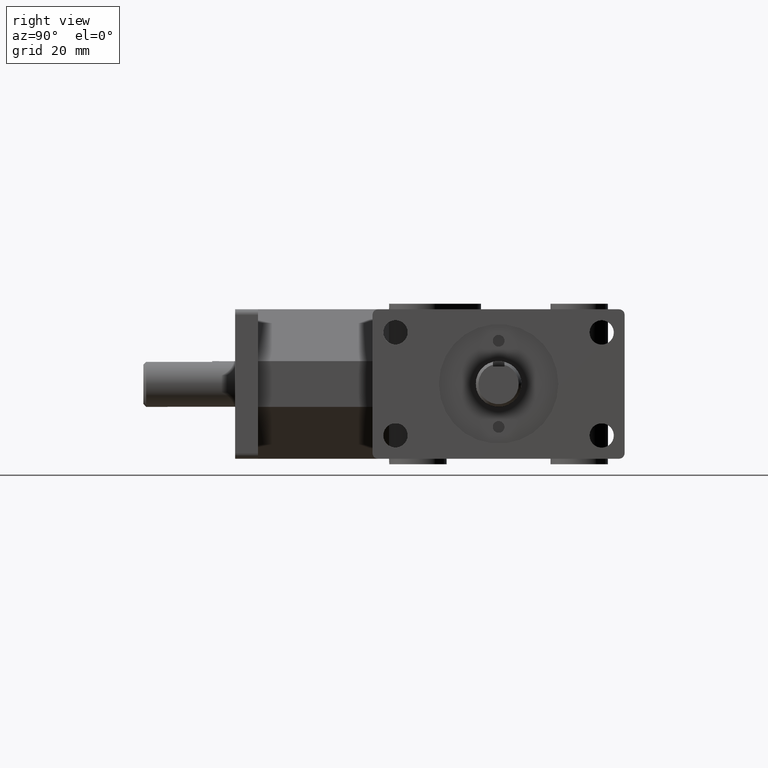
[diagram: clean part render]
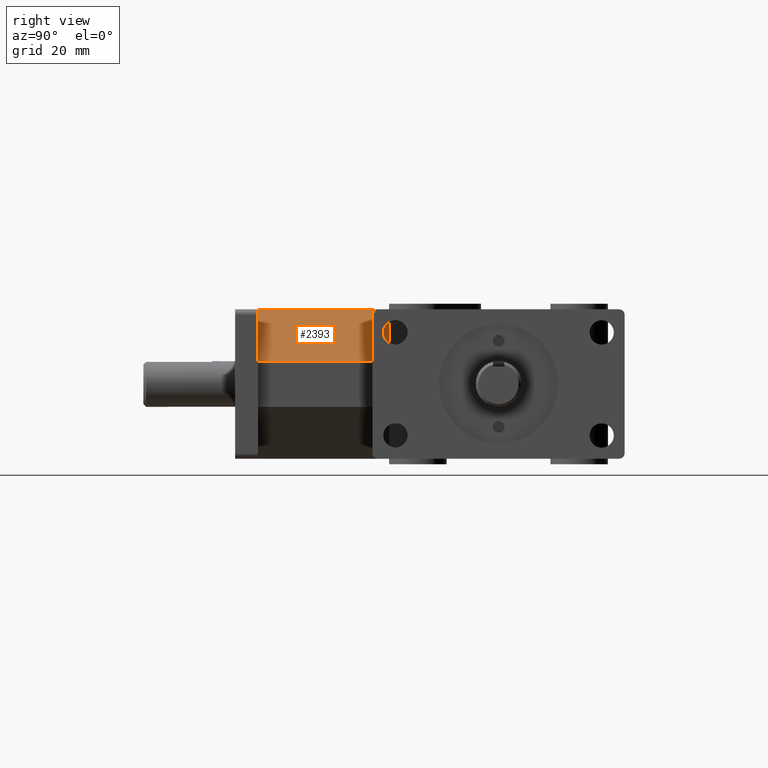
[diagram: same view with one face highlighted and labeled with its STEP entity id]
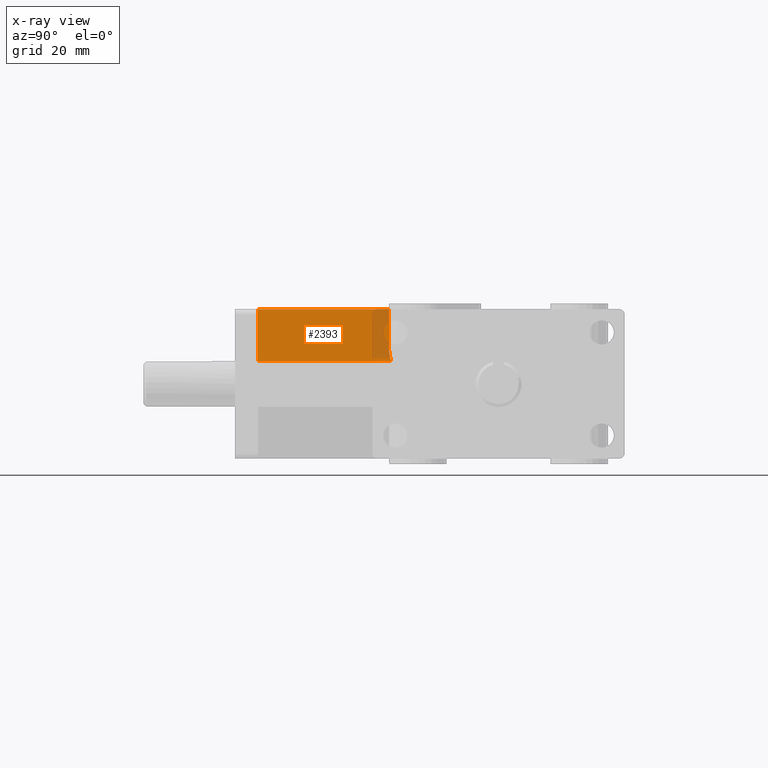
[diagram: x-ray of the same camera — body ghosted, the highlighted face saturated]
A machine part, right view. The second image highlights one B-rep face of the part: STEP entity #2393.
The next image is the same camera in x-ray: the body ghosted, the highlighted face saturated — about 11% of this face is hidden behind the body in this view.
In plain terms, the highlighted planar face has unit normal (-0.7489, 0, -0.6627).
Its self-contained STEP definition (entity closure, byte-faithful):
#235=FACE_OUTER_BOUND('',#370,.T.);
#370=EDGE_LOOP('',(#1718,#1719,#1720,#1721,#1722));
#544=ELLIPSE('',#2563,0.475316107974472,0.315);
#573=LINE('',#3581,#801);
#640=LINE('',#3747,#868);
#641=LINE('',#3749,#869);
#642=LINE('',#3751,#870);
#801=VECTOR('',#2819,1.);
#868=VECTOR('',#2950,1.);
#869=VECTOR('',#2951,1.);
#870=VECTOR('',#2952,1.);
#1031=VERTEX_POINT('',#3578);
#1032=VERTEX_POINT('',#3580);
#1099=VERTEX_POINT('',#3746);
#1100=VERTEX_POINT('',#3748);
#1101=VERTEX_POINT('',#3750);
#1265=EDGE_CURVE('',#1031,#1032,#573,.T.);
#1349=EDGE_CURVE('',#1032,#1099,#640,.T.);
#1350=EDGE_CURVE('',#1100,#1031,#641,.T.);
#1351=EDGE_CURVE('',#1101,#1100,#642,.T.);
#1352=EDGE_CURVE('',#1099,#1101,#544,.T.);
#1718=ORIENTED_EDGE('',*,*,#1349,.F.);
#1719=ORIENTED_EDGE('',*,*,#1265,.F.);
#1720=ORIENTED_EDGE('',*,*,#1350,.F.);
#1721=ORIENTED_EDGE('',*,*,#1351,.F.);
#1722=ORIENTED_EDGE('',*,*,#1352,.F.);
#2306=PLANE('',#2562);
#2393=ADVANCED_FACE('',(#235),#2306,.F.);
#2562=AXIS2_PLACEMENT_3D('',#3745,#2948,#2949);
#2563=AXIS2_PLACEMENT_3D('',#3752,#2953,#2954);
#2819=DIRECTION('',(0.,1.,0.));
#2948=DIRECTION('center_axis',(-0.748870055165724,0.,-0.662716862978517));
#2949=DIRECTION('ref_axis',(0.,1.,0.));
#2950=DIRECTION('',(0.662716862978517,0.,-0.748870055165724));
#2951=DIRECTION('',(-0.662716862978517,0.,0.748870055165724));
#2952=DIRECTION('',(0.,-1.,0.));
#2953=DIRECTION('center_axis',(0.748870055165724,0.,0.662716862978517));
#2954=DIRECTION('ref_axis',(0.662716862978517,0.,-0.748870055165724));
#3578=CARTESIAN_POINT('',(0.5,0.25,0.815));
#3580=CARTESIAN_POINT('',(0.5,1.68,0.815));
#3581=CARTESIAN_POINT('',(0.5,1.18071609311741,0.815));
#3745=CARTESIAN_POINT('Origin',(0.5,0.25,0.815));
#3746=CARTESIAN_POINT('',(0.879999999999999,1.68,0.385600000000001));
#3747=CARTESIAN_POINT('',(1.00281083929905,1.68,0.246823751592077));
#3748=CARTESIAN_POINT('',(1.,0.25,0.25));
#3749=CARTESIAN_POINT('',(0.5,0.25,0.815));
#3750=CARTESIAN_POINT('',(1.,1.70375268241579,0.25));
#3751=CARTESIAN_POINT('',(1.,0.25,0.25));
#3752=CARTESIAN_POINT('Origin',(0.88,1.995,0.3856));